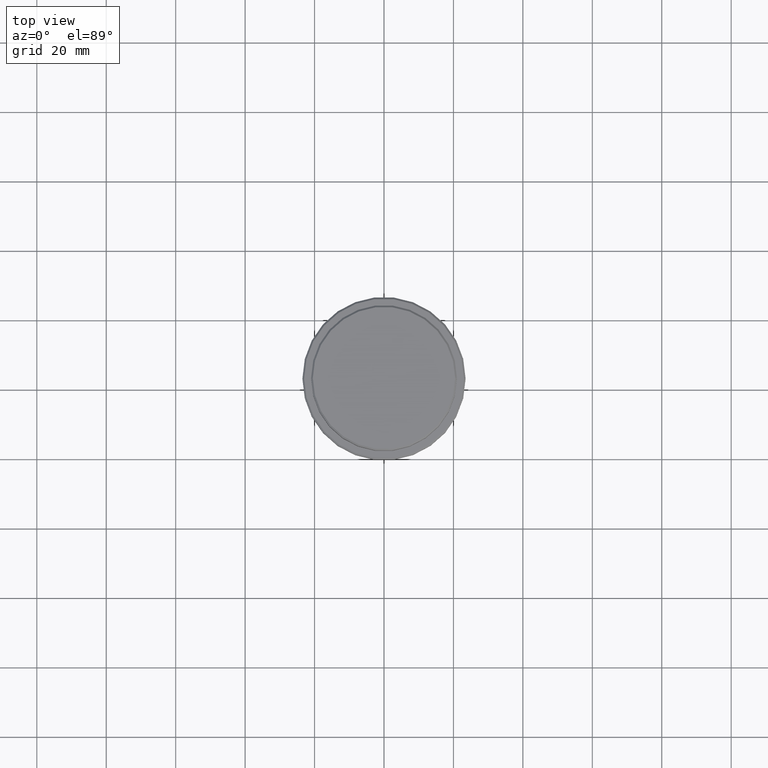
[diagram: clean part render]
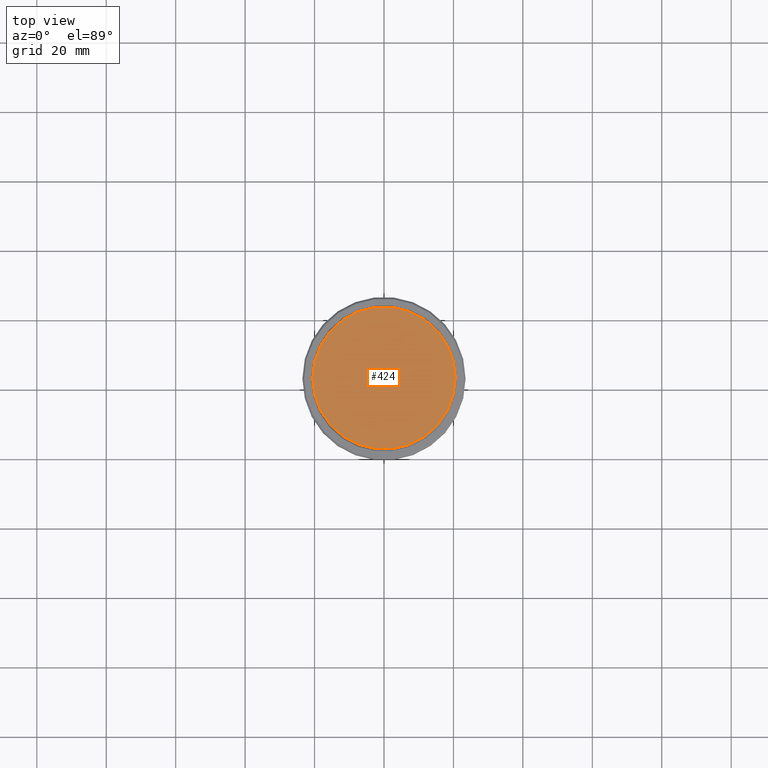
[diagram: same view with one face highlighted and labeled with its STEP entity id]
A machine part, top view. The second image highlights one B-rep face of the part: STEP entity #424.
In plain terms, the highlighted planar face has unit normal (0, -0, 1).
Its self-contained STEP definition (entity closure, byte-faithful):
#24 = CARTESIAN_POINT ( 'NONE',  ( 0.000000000000000000, 0.000000000000000000, 0.000000000000000000 ) ) ;
#38 = AXIS2_PLACEMENT_3D ( 'NONE', #24, #1115, #794 ) ;
#109 = CARTESIAN_POINT ( 'NONE',  ( 0.000000000000000000, 0.000000000000000000, 0.000000000000000000 ) ) ;
#150 = AXIS2_PLACEMENT_3D ( 'NONE', #1196, #438, #642 ) ;
#174 = VERTEX_POINT ( 'NONE', #854 ) ;
#189 = VERTEX_POINT ( 'NONE', #302 ) ;
#198 = CIRCLE ( 'NONE', #381, 20.50000000000001776 ) ;
#302 = CARTESIAN_POINT ( 'NONE',  ( -20.50000000000001776, 0.000000000000000000, 0.000000000000000000 ) ) ;
#381 = AXIS2_PLACEMENT_3D ( 'NONE', #109, #552, #1121 ) ;
#424 = ADVANCED_FACE ( 'NONE', ( #910 ), #457, .T. ) ;
#438 = DIRECTION ( 'NONE',  ( -0.000000000000000000, -0.000000000000000000, 1.000000000000000000 ) ) ;
#457 = PLANE ( 'NONE',  #38 ) ;
#552 = DIRECTION ( 'NONE',  ( -0.000000000000000000, -0.000000000000000000, 1.000000000000000000 ) ) ;
#642 = DIRECTION ( 'NONE',  ( 1.000000000000000000, 0.000000000000000000, 0.000000000000000000 ) ) ;
#716 = ORIENTED_EDGE ( 'NONE', *, *, #793, .T. ) ;
#766 = EDGE_LOOP ( 'NONE', ( #848, #716 ) ) ;
#793 = EDGE_CURVE ( 'NONE', #174, #189, #1136, .T. ) ;
#794 = DIRECTION ( 'NONE',  ( 1.000000000000000000, 0.000000000000000000, 0.000000000000000000 ) ) ;
#848 = ORIENTED_EDGE ( 'NONE', *, *, #855, .T. ) ;
#854 = CARTESIAN_POINT ( 'NONE',  ( 20.50000000000001776, 2.541142108230759057E-15, 0.000000000000000000 ) ) ;
#855 = EDGE_CURVE ( 'NONE', #189, #174, #198, .T. ) ;
#910 = FACE_OUTER_BOUND ( 'NONE', #766, .T. ) ;
#1115 = DIRECTION ( 'NONE',  ( 0.000000000000000000, -0.000000000000000000, 1.000000000000000000 ) ) ;
#1121 = DIRECTION ( 'NONE',  ( 1.000000000000000000, 0.000000000000000000, 0.000000000000000000 ) ) ;
#1136 = CIRCLE ( 'NONE', #150, 20.50000000000001776 ) ;
#1196 = CARTESIAN_POINT ( 'NONE',  ( 0.000000000000000000, 0.000000000000000000, 0.000000000000000000 ) ) ;